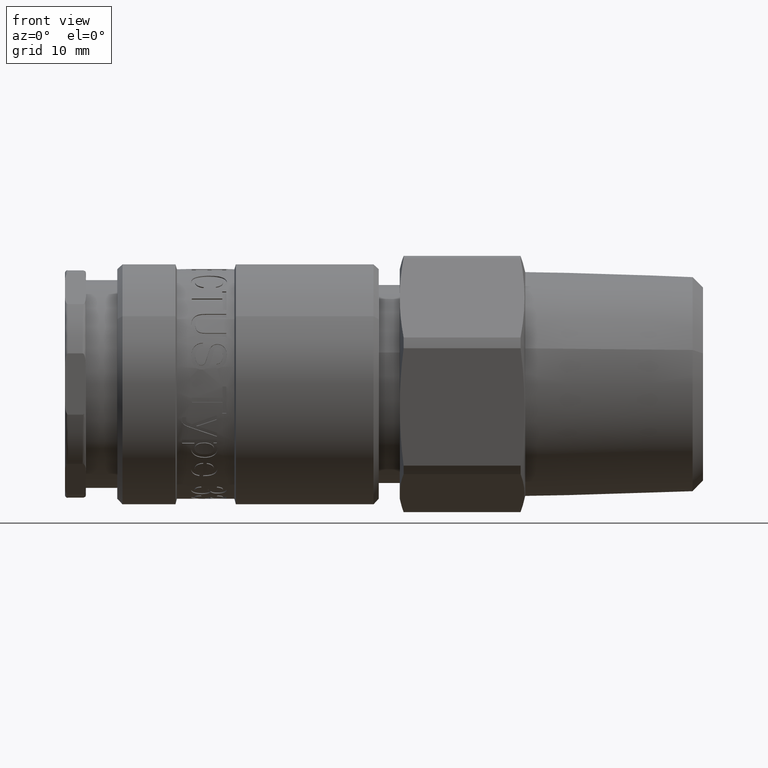
[diagram: clean part render]
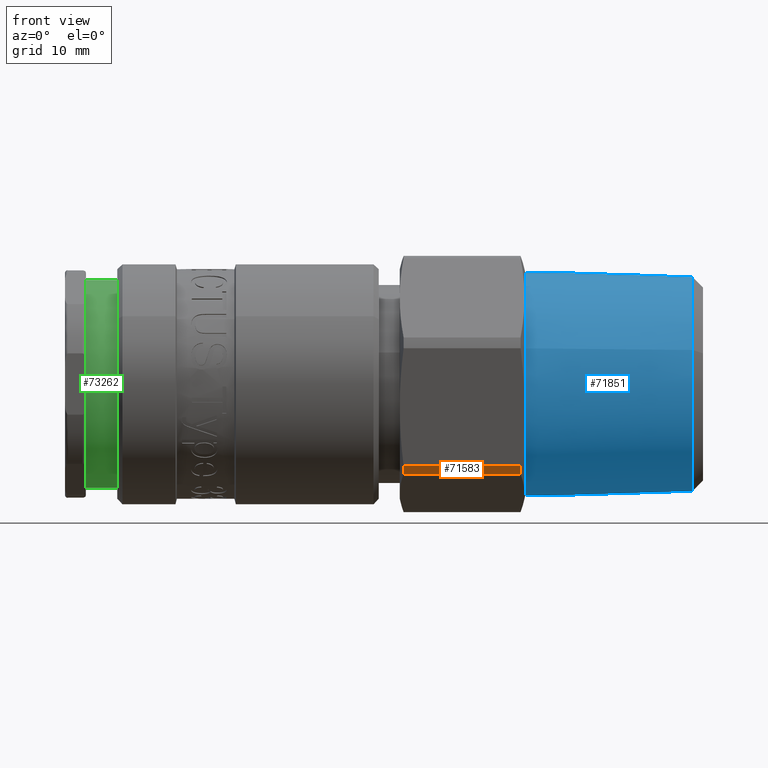
[diagram: same view with three faces highlighted in distinct colors, each labeled with its STEP entity id]
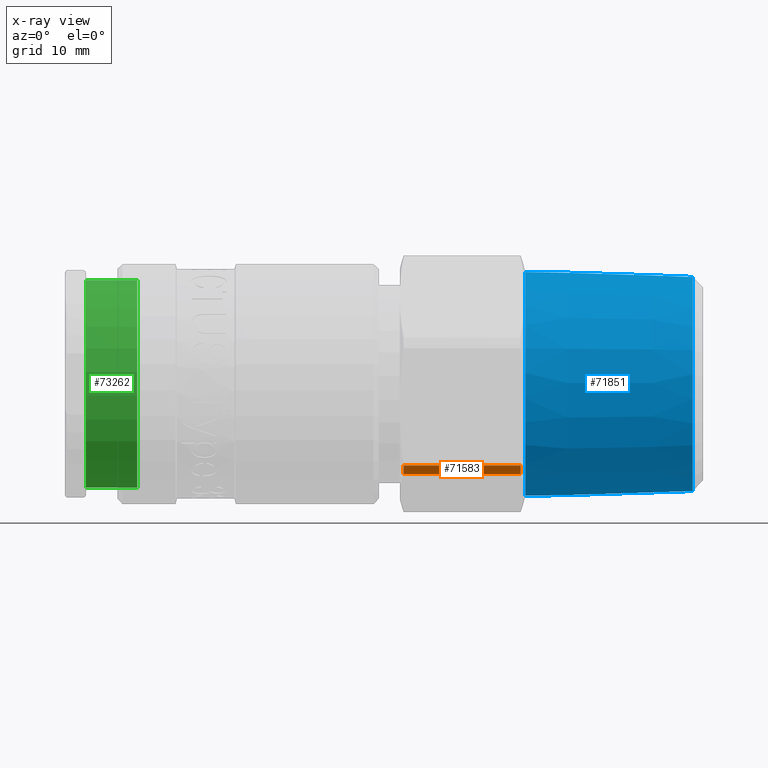
[diagram: x-ray of the same camera — body ghosted, the three highlighted faces saturated]
A machine part, front view with three faces highlighted in distinct colors.
The next image is the same camera in x-ray (body ghosted, the three faces saturated) — at least one of them is partly hidden behind the body in this view.
Their STEP definitions:

[orange] entity #71583 — the highlighted cylindrical surface (partial cylindrical patch) has radius 12.4 mm, axis along (1, -0, -0).
#71136=CARTESIAN_POINT('',(32.375128869403504,-9.638605645368699,-7.801107691415967));
#71137=VERTEX_POINT('',#71136);
#71153=CARTESIAN_POINT('',(43.557585156175364,-9.638605645368747,-7.801107691415967));
#71154=VERTEX_POINT('',#71153);
#71155=CARTESIAN_POINT('',(43.557585156175364,-9.638605645368745,-7.801107691415966));
#71156=DIRECTION('',(-1.0,0.0,0.0));
#71157=VECTOR('',#71156,11.18245628677186);
#71158=LINE('',#71155,#71157);
#71159=EDGE_CURVE('',#71154,#71137,#71158,.T.);
#71493=CARTESIAN_POINT('',(43.557585156175371,-8.918809762662063,-8.614803098007943));
#71494=VERTEX_POINT('',#71493);
#71495=CARTESIAN_POINT('',(43.557585156175406,-1.669118E-013,-1.910753E-014));
#71496=DIRECTION('',(1.0,-3.338455E-015,1.117290E-015));
#71497=DIRECTION('',(-3.520458E-015,-0.948301558621145,0.317370688496445));
#71498=AXIS2_PLACEMENT_3D('',#71495,#71496,#71497);
#71499=CIRCLE('',#71498,12.400000000000006);
#71500=EDGE_CURVE('',#71154,#71494,#71499,.T.);
#71559=CARTESIAN_POINT('',(37.96635701278948,-1.453240E-013,-1.662453E-014));
#71560=DIRECTION('',(1.0,-3.861007E-015,-4.440892E-016));
#71561=DIRECTION('',(-3.520458E-015,-0.948301558621145,0.317370688496445));
#71562=AXIS2_PLACEMENT_3D('',#71559,#71560,#71561);
#71563=CYLINDRICAL_SURFACE('',#71562,12.400000000000006);
#71564=ORIENTED_EDGE('',*,*,#71159,.T.);
#71565=CARTESIAN_POINT('',(32.375128869403504,-8.918809762662027,-8.614803098007931));
#71566=VERTEX_POINT('',#71565);
#71567=CARTESIAN_POINT('',(32.375128869403554,-1.237362E-013,-1.414152E-014));
#71568=DIRECTION('',(1.0,-3.338455E-015,1.117290E-015));
#71569=DIRECTION('',(-3.520458E-015,-0.948301558621145,0.317370688496445));
#71570=AXIS2_PLACEMENT_3D('',#71567,#71568,#71569);
#71571=CIRCLE('',#71570,12.400000000000006);
#71572=EDGE_CURVE('',#71137,#71566,#71571,.T.);
#71573=ORIENTED_EDGE('',*,*,#71572,.T.);
#71574=CARTESIAN_POINT('',(32.375128869403504,-8.918809762662024,-8.614803098007934));
#71575=DIRECTION('',(1.0,0.0,0.0));
#71576=VECTOR('',#71575,11.18245628677186);
#71577=LINE('',#71574,#71576);
#71578=EDGE_CURVE('',#71566,#71494,#71577,.T.);
#71579=ORIENTED_EDGE('',*,*,#71578,.T.);
#71580=ORIENTED_EDGE('',*,*,#71500,.F.);
#71581=EDGE_LOOP('',(#71564,#71573,#71579,#71580));
#71582=FACE_OUTER_BOUND('',#71581,.T.);
#71583=ADVANCED_FACE('',(#71582),#71563,.T.);

[blue] entity #71851 — the highlighted conical surface has half-angle 1.78 deg.
#71481=CARTESIAN_POINT('',(43.999999999999929,-10.193184706970907,3.411381136108771));
#71482=VERTEX_POINT('',#71481);
#71483=CARTESIAN_POINT('',(43.999999999999979,-1.686199E-013,-1.930400E-014));
#71484=DIRECTION('',(1.0,-3.338455E-015,1.117290E-015));
#71485=DIRECTION('',(-3.520458E-015,-0.948301558621145,0.317370688496445));
#71486=AXIS2_PLACEMENT_3D('',#71483,#71484,#71485);
#71487=CIRCLE('',#71486,10.748885324824203);
#71488=EDGE_CURVE('',#71482,#71482,#71487,.T.);
#71817=CARTESIAN_POINT('',(60.000482536104514,-9.721646741183706,3.253570229342231));
#71818=VERTEX_POINT('',#71817);
#71819=CARTESIAN_POINT('',(60.000482536104549,-2.301987E-013,-2.581437E-014));
#71820=DIRECTION('',(1.0,-3.338455E-015,1.117290E-015));
#71821=DIRECTION('',(3.520458E-015,0.948301558621145,-0.317370688496445));
#71822=AXIS2_PLACEMENT_3D('',#71819,#71820,#71821);
#71823=CIRCLE('',#71822,10.251640580786351);
#71824=EDGE_CURVE('',#71818,#71818,#71823,.T.);
#71840=CARTESIAN_POINT('',(52.499999999999972,-2.014385E-013,-2.307876E-014));
#71841=DIRECTION('',(-1.0,3.861007E-015,4.440892E-016));
#71842=DIRECTION('',(-3.520458E-015,-0.948301558621145,0.317370688496445));
#71843=AXIS2_PLACEMENT_3D('',#71840,#71841,#71842);
#71844=CONICAL_SURFACE('',#71843,10.484732021023232,1.779999999999982);
#71845=ORIENTED_EDGE('',*,*,#71488,.T.);
#71846=EDGE_LOOP('',(#71845));
#71847=FACE_OUTER_BOUND('',#71846,.T.);
#71848=ORIENTED_EDGE('',*,*,#71824,.F.);
#71849=EDGE_LOOP('',(#71848));
#71850=FACE_BOUND('',#71849,.T.);
#71851=ADVANCED_FACE('',(#71847,#71850),#71844,.T.);

[green] entity #73262 — the highlighted cylindrical surface (bore or boss wall) has radius 9.95 mm, axis along (1, 0, 0).
#72969=CARTESIAN_POINT('',(2.000000000000001,9.949999999999999,0.0));
#72970=VERTEX_POINT('',#72969);
#72971=CARTESIAN_POINT('',(2.000000000000001,0.0,0.0));
#72972=DIRECTION('',(1.0,0.0,0.0));
#72973=DIRECTION('',(0.0,1.0,0.0));
#72974=AXIS2_PLACEMENT_3D('',#72971,#72972,#72973);
#72975=CIRCLE('',#72974,9.949999999999999);
#72976=EDGE_CURVE('',#72970,#72970,#72975,.T.);
#73243=CARTESIAN_POINT('',(4.455977309068273,0.0,0.0));
#73244=DIRECTION('',(1.0,0.0,0.0));
#73245=DIRECTION('',(0.0,1.0,0.0));
#73246=AXIS2_PLACEMENT_3D('',#73243,#73244,#73245);
#73247=CYLINDRICAL_SURFACE('',#73246,9.949999999999999);
#73248=CARTESIAN_POINT('',(6.911954618136545,9.949999999999999,0.0));
#73249=VERTEX_POINT('',#73248);
#73250=CARTESIAN_POINT('',(6.911954618136545,0.0,0.0));
#73251=DIRECTION('',(1.0,0.0,0.0));
#73252=DIRECTION('',(0.0,1.0,0.0));
#73253=AXIS2_PLACEMENT_3D('',#73250,#73251,#73252);
#73254=CIRCLE('',#73253,9.949999999999999);
#73255=EDGE_CURVE('',#73249,#73249,#73254,.T.);
#73256=ORIENTED_EDGE('',*,*,#73255,.F.);
#73257=EDGE_LOOP('',(#73256));
#73258=FACE_OUTER_BOUND('',#73257,.T.);
#73259=ORIENTED_EDGE('',*,*,#72976,.T.);
#73260=EDGE_LOOP('',(#73259));
#73261=FACE_BOUND('',#73260,.T.);
#73262=ADVANCED_FACE('',(#73258,#73261),#73247,.T.);